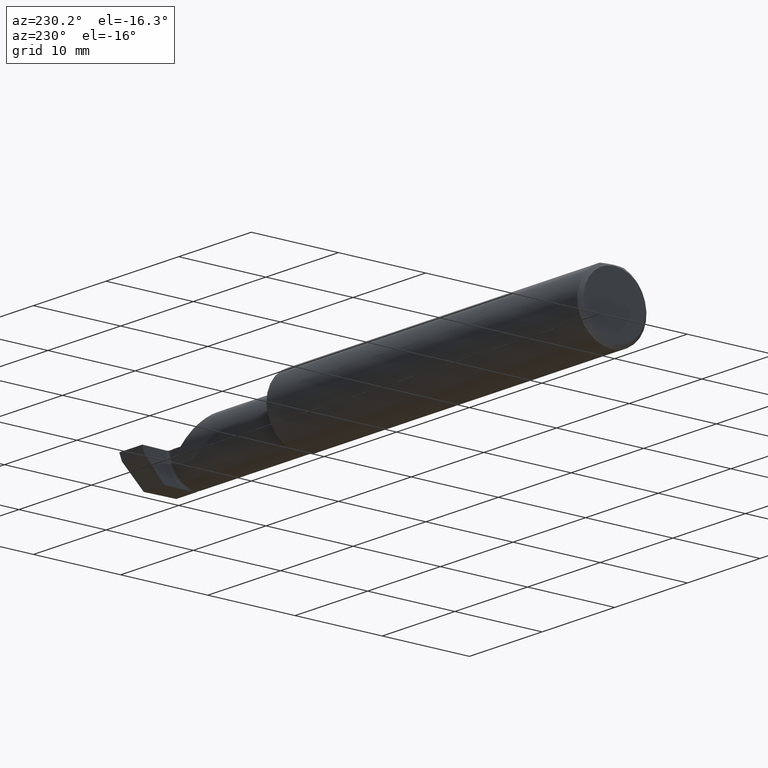
[diagram: clean part render]
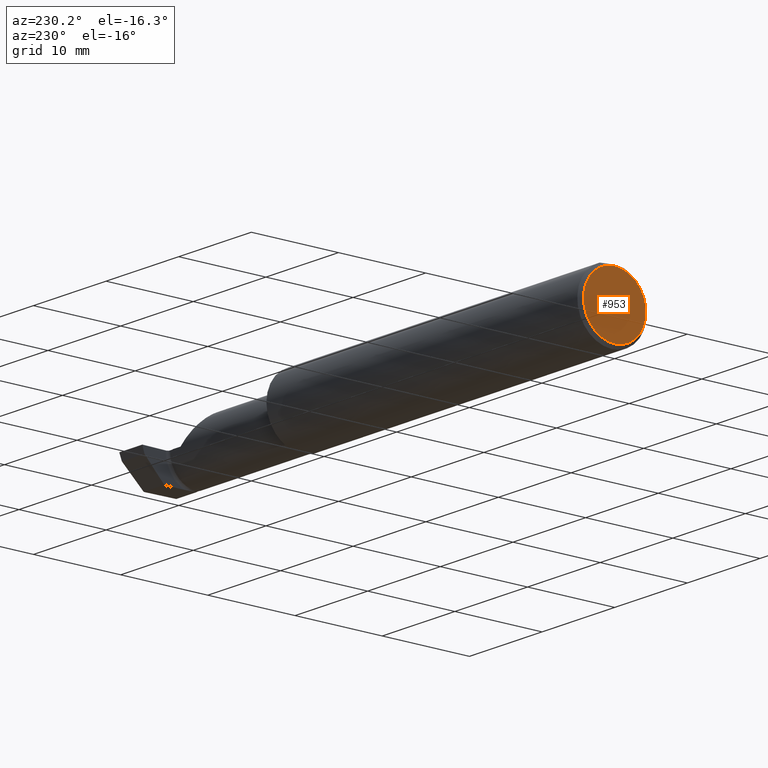
[diagram: same view with one face highlighted and labeled with its STEP entity id]
A machine part, auxiliary view. The second image highlights one B-rep face of the part: STEP entity #953.
In plain terms, the highlighted planar face has unit normal (1, 0, 0).
Its self-contained STEP definition (entity closure, byte-faithful):
#80 = AXIS2_PLACEMENT_3D ( 'NONE', #91, #424, #430 ) ;
#82 = CARTESIAN_POINT ( 'NONE',  ( 0.000000000000000000, 0.000000000000000000, 0.000000000000000000 ) ) ;
#91 = CARTESIAN_POINT ( 'NONE',  ( 0.000000000000000000, 0.000000000000000000, 0.000000000000000000 ) ) ;
#252 = ORIENTED_EDGE ( 'NONE', *, *, #922, .T. ) ;
#269 = PLANE ( 'NONE',  #80 ) ;
#314 = CARTESIAN_POINT ( 'NONE',  ( 0.000000000000000000, 0.000000000000000000, 0.000000000000000000 ) ) ;
#424 = DIRECTION ( 'NONE',  ( 1.000000000000000000, 0.000000000000000000, 0.000000000000000000 ) ) ;
#430 = DIRECTION ( 'NONE',  ( 0.000000000000000000, 0.000000000000000000, -1.000000000000000000 ) ) ;
#468 = CIRCLE ( 'NONE', #750, 0.1410999999999999754 ) ;
#530 = DIRECTION ( 'NONE',  ( -1.000000000000000000, -0.000000000000000000, -0.000000000000000000 ) ) ;
#618 = AXIS2_PLACEMENT_3D ( 'NONE', #82, #530, #849 ) ;
#646 = CARTESIAN_POINT ( 'NONE',  ( 0.000000000000000000, 0.000000000000000000, -0.1410999999999999754 ) ) ;
#653 = DIRECTION ( 'NONE',  ( 0.000000000000000000, 0.000000000000000000, 1.000000000000000000 ) ) ;
#665 = EDGE_LOOP ( 'NONE', ( #711, #252 ) ) ;
#687 = FACE_OUTER_BOUND ( 'NONE', #665, .T. ) ;
#711 = ORIENTED_EDGE ( 'NONE', *, *, #1080, .T. ) ;
#750 = AXIS2_PLACEMENT_3D ( 'NONE', #314, #992, #653 ) ;
#753 = CARTESIAN_POINT ( 'NONE',  ( 0.000000000000000000, 1.819825143532966472E-17, 0.1410999999999999754 ) ) ;
#761 = VERTEX_POINT ( 'NONE', #753 ) ;
#849 = DIRECTION ( 'NONE',  ( 0.000000000000000000, 0.000000000000000000, 1.000000000000000000 ) ) ;
#922 = EDGE_CURVE ( 'NONE', #761, #1052, #955, .T. ) ;
#953 = ADVANCED_FACE ( 'NONE', ( #687 ), #269, .F. ) ;
#955 = CIRCLE ( 'NONE', #618, 0.1410999999999999754 ) ;
#992 = DIRECTION ( 'NONE',  ( -1.000000000000000000, -0.000000000000000000, -0.000000000000000000 ) ) ;
#1052 = VERTEX_POINT ( 'NONE', #646 ) ;
#1080 = EDGE_CURVE ( 'NONE', #1052, #761, #468, .T. ) ;